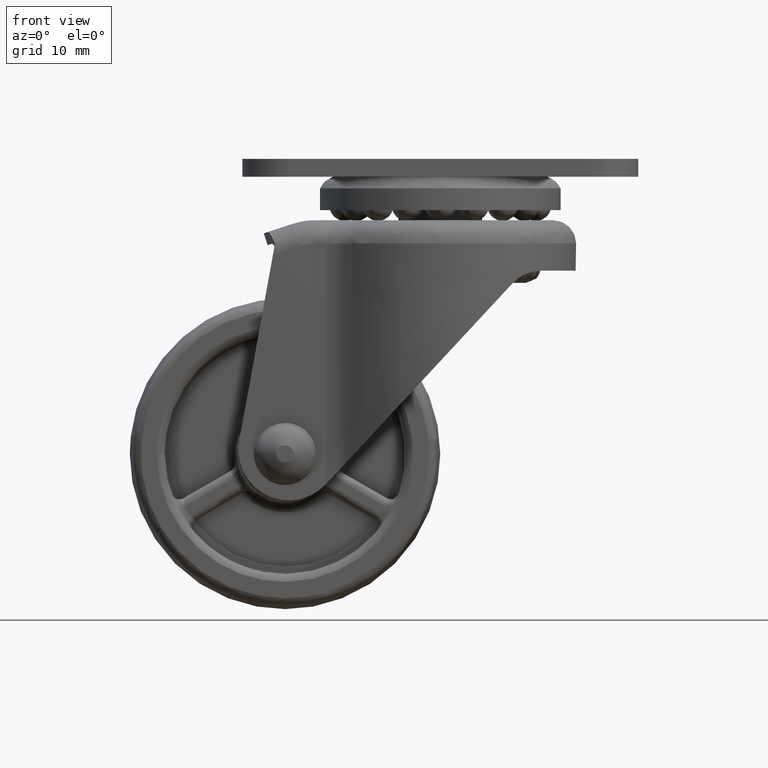
[diagram: clean part render]
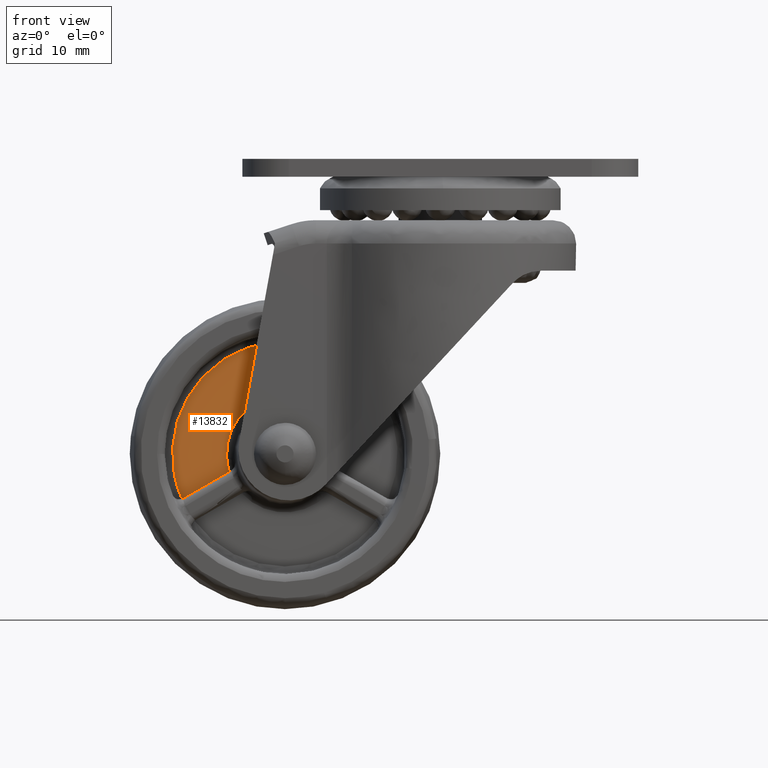
[diagram: same view with one face highlighted and labeled with its STEP entity id]
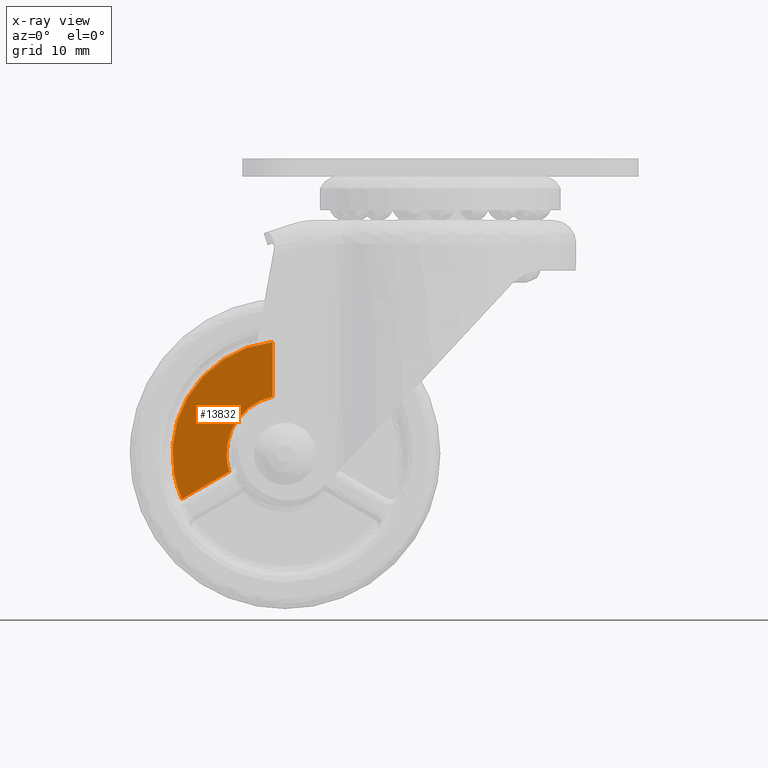
[diagram: x-ray of the same camera — body ghosted, the highlighted face saturated]
A machine part, front view. The second image highlights one B-rep face of the part: STEP entity #13832.
The next image is the same camera in x-ray: the body ghosted, the highlighted face saturated — about 0% of this face is hidden behind the body in this view.
In plain terms, the highlighted face is a freeform B-spline surface patch.
Its self-contained STEP definition (entity closure, byte-faithful):
#7153=CARTESIAN_POINT('',(-13.284967197612740,-3.0,-5.810305203545990));
#7154=VERTEX_POINT('',#7153);
#7208=CARTESIAN_POINT('',(-13.153846587247701,-3.0,-5.746853383057521));
#7209=VERTEX_POINT('',#7208);
#7215=CARTESIAN_POINT('',(-13.284967197612740,-3.0,-5.810305203545997));
#7216=CARTESIAN_POINT('',(-13.217090036988646,-3.000000000000000,-5.783366980988066));
#7217=CARTESIAN_POINT('',(-13.153846587247701,-3.0,-5.746853383057525));
#7225=(BOUNDED_CURVE()B_SPLINE_CURVE(2,(#7215,#7216,#7217),.UNSPECIFIED.,.F.,.U.)CURVE()GEOMETRIC_REPRESENTATION_ITEM()QUASI_UNIFORM_CURVE()RATIONAL_B_SPLINE_CURVE((1.0,0.997344129678192,1.0))REPRESENTATION_ITEM(''));
#7226=EDGE_CURVE('',#7154,#7209,#7225,.T.);
#8061=CARTESIAN_POINT('',(-1.599995195722640,-3.0,14.264992736033800));
#8062=VERTEX_POINT('',#8061);
#8063=CARTESIAN_POINT('',(-1.610604540377740,-3.0,14.410272482313260));
#8064=VERTEX_POINT('',#8063);
#8065=CARTESIAN_POINT('',(-1.599995195722642,-3.0,14.264992736033800));
#8066=CARTESIAN_POINT('',(-1.599995177233854,-3.000000000000000,14.338019994852544));
#8067=CARTESIAN_POINT('',(-1.610604540377739,-3.0,14.410272482313260));
#8075=(BOUNDED_CURVE()B_SPLINE_CURVE(2,(#8065,#8066,#8067),.UNSPECIFIED.,.F.,.U.)CURVE()GEOMETRIC_REPRESENTATION_ITEM()QUASI_UNIFORM_CURVE()RATIONAL_B_SPLINE_CURVE((1.0,0.997344127812332,1.0))REPRESENTATION_ITEM(''));
#8076=EDGE_CURVE('',#8062,#8064,#8075,.T.);
#13427=CARTESIAN_POINT('',(-7.180262715210280,-3.0,-2.298005469141285));
#13428=VERTEX_POINT('',#13427);
#13436=CARTESIAN_POINT('',(-13.153846587247701,-3.0,-5.746853383057521));
#13437=CARTESIAN_POINT('',(-7.180262715210280,-3.0,-2.298005469141285));
#13438=QUASI_UNIFORM_CURVE('',1,(#13436,#13437),.UNSPECIFIED.,.F.,.U.);
#13439=EDGE_CURVE('',#7209,#13428,#13438,.T.);
#13579=CARTESIAN_POINT('',(-1.599996942058250,-3.0,7.367293368737700));
#13580=VERTEX_POINT('',#13579);
#13592=CARTESIAN_POINT('',(-1.599996942058250,-3.0,7.367293368737700));
#13593=CARTESIAN_POINT('',(-1.599995195722640,-3.0,14.264992736033800));
#13594=QUASI_UNIFORM_CURVE('',1,(#13592,#13593),.UNSPECIFIED.,.F.,.U.);
#13595=EDGE_CURVE('',#13580,#8062,#13594,.T.);
#13783=CARTESIAN_POINT('',(-1.610604540377739,-3.0,14.410272482313260));
#13784=CARTESIAN_POINT('',(-8.893329210588099,-3.0,13.596298323631782));
#13785=CARTESIAN_POINT('',(-12.557366556642050,-3.0,7.250003114628830));
#13786=CARTESIAN_POINT('',(-16.221403902696000,-3.0,0.903707905625880));
#13787=CARTESIAN_POINT('',(-13.284967197612740,-3.0,-5.810305203545980));
#13795=(BOUNDED_CURVE()B_SPLINE_CURVE(2,(#13783,#13784,#13785,#13786,#13787),.UNSPECIFIED.,.F.,.U.)B_SPLINE_CURVE_WITH_KNOTS((3,2,3),(0.0,0.500000000000000,1.0),.UNSPECIFIED.)CURVE()GEOMETRIC_REPRESENTATION_ITEM()RATIONAL_B_SPLINE_CURVE((1.0,0.892496761013899,1.0,0.892496761013899,1.0))REPRESENTATION_ITEM(''));
#13796=EDGE_CURVE('',#8064,#7154,#13795,.T.);
#13805=CARTESIAN_POINT('',(-15.139802272428771,-3.0,15.420290488346840));
#13806=CARTESIAN_POINT('',(-15.139802272428771,-3.0,-6.820323571151677));
#13807=CARTESIAN_POINT('',(-0.955856235302411,-3.0,15.420290488346840));
#13808=CARTESIAN_POINT('',(-0.955856235302411,-3.0,-6.820323571151677));
#13809=B_SPLINE_SURFACE_WITH_KNOTS('',1,1,((#13805,#13807),(#13806,#13808)),.UNSPECIFIED.,.F.,.F.,.U.,(2,2),(2,2),(0.0,22.240614059498519),(0.0,14.183946037126359),.UNSPECIFIED.);
#13810=ORIENTED_EDGE('',*,*,#13595,.T.);
#13811=ORIENTED_EDGE('',*,*,#8076,.T.);
#13812=ORIENTED_EDGE('',*,*,#13796,.T.);
#13813=ORIENTED_EDGE('',*,*,#7226,.T.);
#13814=ORIENTED_EDGE('',*,*,#13439,.T.);
#13815=CARTESIAN_POINT('',(-1.599996942058247,-3.0,7.367293368737704));
#13816=CARTESIAN_POINT('',(-4.860657060318625,-3.000000000000000,6.659157292543720));
#13817=CARTESIAN_POINT('',(-6.528992289675381,-3.0,3.769517406379987));
#13818=CARTESIAN_POINT('',(-8.197327519032136,-3.000000000000000,0.879877520216255));
#13819=CARTESIAN_POINT('',(-7.180262715210286,-3.0,-2.298005469141287));
#13827=(BOUNDED_CURVE()B_SPLINE_CURVE(2,(#13815,#13816,#13817,#13818,#13819),.UNSPECIFIED.,.F.,.U.)B_SPLINE_CURVE_WITH_KNOTS((3,2,3),(0.0,0.500000000000000,1.0),.UNSPECIFIED.)CURVE()GEOMETRIC_REPRESENTATION_ITEM()RATIONAL_B_SPLINE_CURVE((1.0,0.914441202038089,1.0,0.914441202038089,1.0))REPRESENTATION_ITEM(''));
#13828=EDGE_CURVE('',#13580,#13428,#13827,.T.);
#13829=ORIENTED_EDGE('',*,*,#13828,.F.);
#13830=EDGE_LOOP('',(#13810,#13811,#13812,#13813,#13814,#13829));
#13831=FACE_OUTER_BOUND('',#13830,.T.);
#13832=ADVANCED_FACE('',(#13831),#13809,.T.);